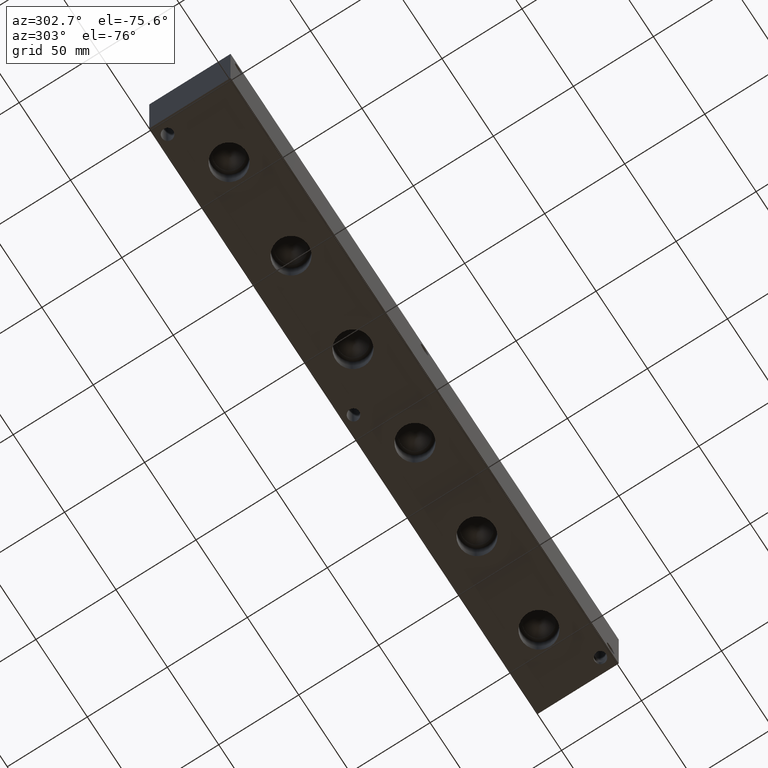
[diagram: clean part render]
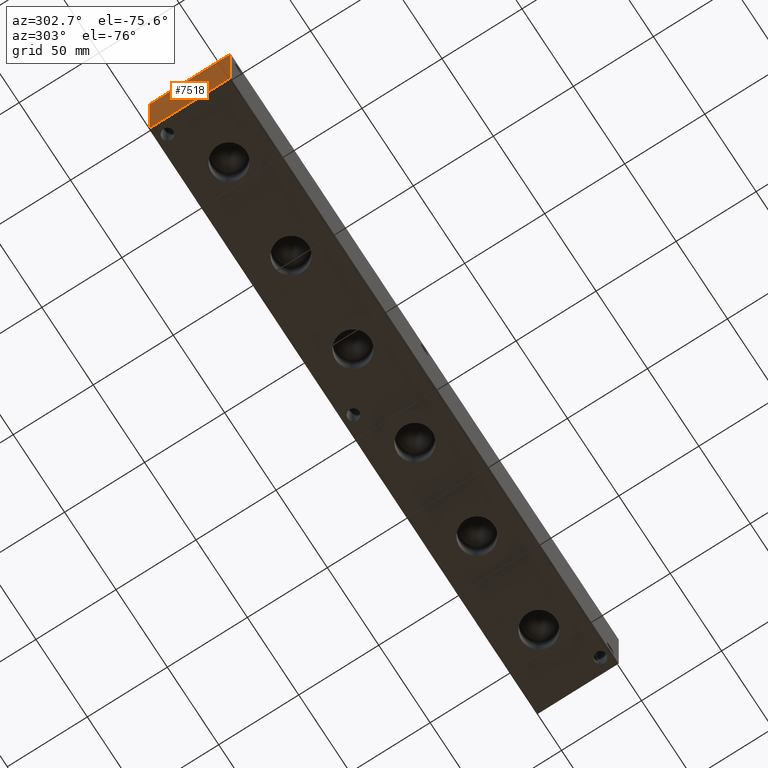
[diagram: same view with one face highlighted and labeled with its STEP entity id]
A machine part, auxiliary view. The second image highlights one B-rep face of the part: STEP entity #7518.
In plain terms, the highlighted planar face has unit normal (-1, 0, 0).
Its self-contained STEP definition (entity closure, byte-faithful):
#458=PLANE('',#7915);
#842=FACE_OUTER_BOUND('',#1278,.T.);
#1278=EDGE_LOOP('',(#6671,#6672,#6673,#6674));
#1556=LINE('',#11726,#2247);
#1982=LINE('',#12982,#2673);
#1983=LINE('',#12983,#2674);
#1984=LINE('',#12984,#2675);
#2247=VECTOR('',#8300,10.);
#2673=VECTOR('',#9362,10.);
#2674=VECTOR('',#9363,10.);
#2675=VECTOR('',#9364,10.);
#3223=VERTEX_POINT('',#11719);
#3226=VERTEX_POINT('',#11724);
#3609=VERTEX_POINT('',#12980);
#3610=VERTEX_POINT('',#12981);
#4084=EDGE_CURVE('',#3226,#3223,#1556,.T.);
#4640=EDGE_CURVE('',#3609,#3610,#1982,.T.);
#4641=EDGE_CURVE('',#3610,#3223,#1983,.T.);
#4642=EDGE_CURVE('',#3609,#3226,#1984,.T.);
#6671=ORIENTED_EDGE('',*,*,#4640,.T.);
#6672=ORIENTED_EDGE('',*,*,#4641,.T.);
#6673=ORIENTED_EDGE('',*,*,#4084,.F.);
#6674=ORIENTED_EDGE('',*,*,#4642,.F.);
#7518=ADVANCED_FACE('',(#842),#458,.T.);
#7915=AXIS2_PLACEMENT_3D('',#12979,#9360,#9361);
#8300=DIRECTION('',(0.,-1.,0.));
#9360=DIRECTION('center_axis',(-1.,0.,0.));
#9361=DIRECTION('ref_axis',(0.,-1.,0.));
#9362=DIRECTION('',(0.,-1.,0.));
#9363=DIRECTION('',(0.,0.,1.));
#9364=DIRECTION('',(0.,0.,1.));
#11719=CARTESIAN_POINT('',(0.,0.,50.8));
#11724=CARTESIAN_POINT('',(0.,50.8,50.8));
#11726=CARTESIAN_POINT('',(0.,50.8,50.8));
#12979=CARTESIAN_POINT('Origin',(0.,50.8,0.));
#12980=CARTESIAN_POINT('',(0.,50.8,0.));
#12981=CARTESIAN_POINT('',(0.,0.,0.));
#12982=CARTESIAN_POINT('',(0.,50.8,0.));
#12983=CARTESIAN_POINT('',(0.,0.,0.));
#12984=CARTESIAN_POINT('',(0.,50.8,0.));